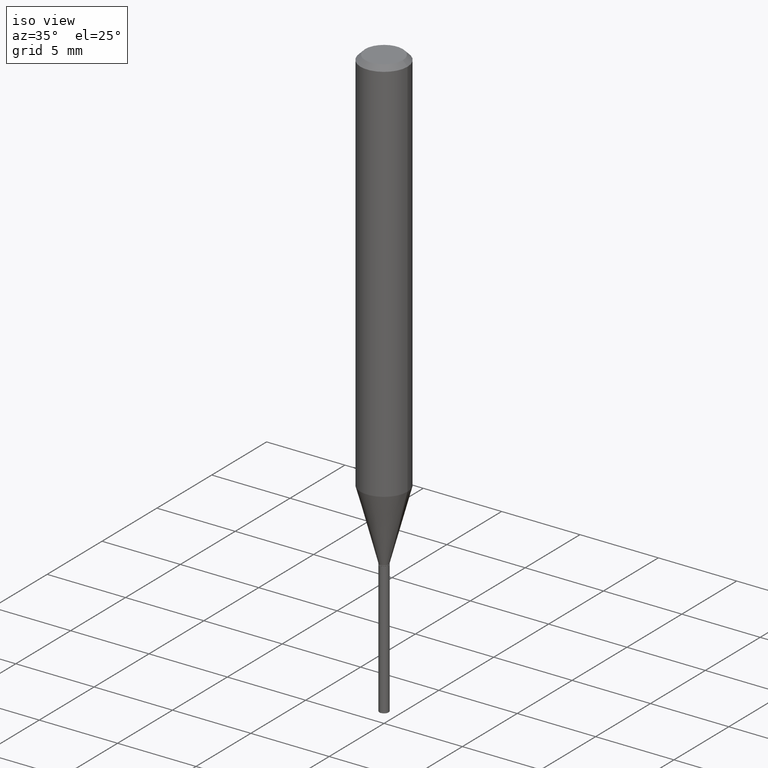
[diagram: clean part render]
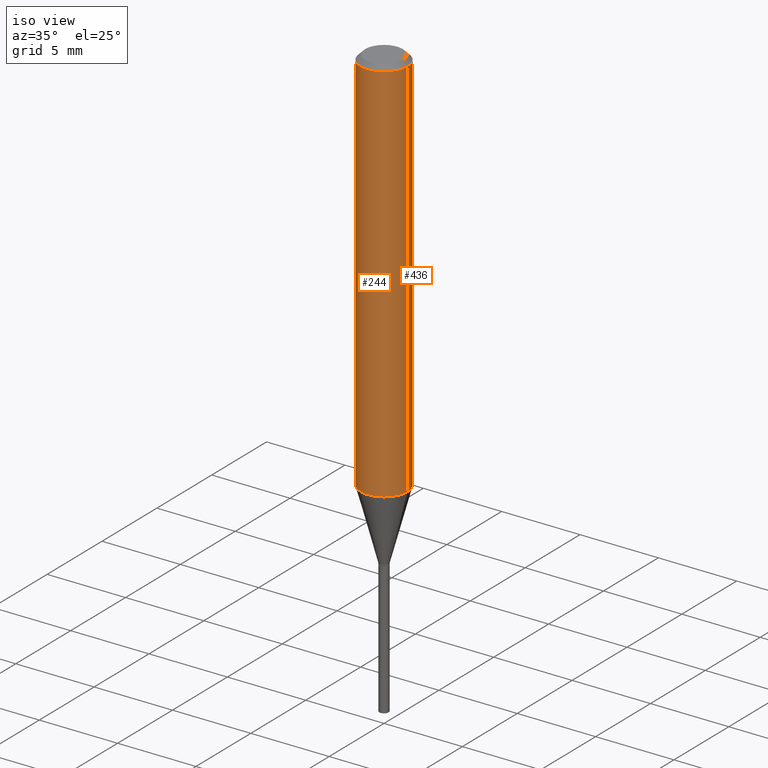
[diagram: same view with one multi-face feature highlighted, each face labeled with its STEP entity id]
A machine part, iso view. The highlighted faces form ONE feature: a constant-radius fillet chain: 2 tangent blend faces with common blend radius 1.4999 mm. The faces share edges in the B-rep.
Their STEP definitions:
[1] entity #436 (Cylinder):
#17 = VERTEX_POINT ( 'NONE', #150 ) ;
#26 = DIRECTION ( 'NONE',  ( 1.000000000000000000, -6.982962677686266711E-15, 0.000000000000000000 ) ) ;
#36 = AXIS2_PLACEMENT_3D ( 'NONE', #487, #180, #154 ) ;
#58 = VERTEX_POINT ( 'NONE', #109 ) ;
#72 = DIRECTION ( 'NONE',  ( -2.445468806185136597E-29, 3.491481338843145583E-15, 1.000000000000000000 ) ) ;
#73 = CYLINDRICAL_SURFACE ( 'NONE', #342, 0.05905000000000006077 ) ;
#78 = EDGE_LOOP ( 'NONE', ( #208, #466, #175, #459 ) ) ;
#98 = DIRECTION ( 'NONE',  ( -2.445468806185136877E-29, 3.491481338843145188E-15, 1.000000000000000000 ) ) ;
#104 = LINE ( 'NONE', #249, #222 ) ;
#109 = CARTESIAN_POINT ( 'NONE',  ( -0.05905000000000011628, -2.991302175709703364E-15, -0.9769141891808567069 ) ) ;
#110 = CARTESIAN_POINT ( 'NONE',  ( 0.05904999999999999832, -4.535783407291118600E-16, -0.01181000000000007218 ) ) ;
#122 = CIRCLE ( 'NONE', #36, 0.05905000000000011628 ) ;
#146 = VERTEX_POINT ( 'NONE', #295 ) ;
#150 = CARTESIAN_POINT ( 'NONE',  ( -0.05904999999999999832, -1.306480542427550405E-15, -0.01181000000000007218 ) ) ;
#154 = DIRECTION ( 'NONE',  ( 1.000000000000000000, -6.982962677686266711E-15, 0.000000000000000000 ) ) ;
#175 = ORIENTED_EDGE ( 'NONE', *, *, #393, .F. ) ;
#177 = AXIS2_PLACEMENT_3D ( 'NONE', #465, #72, #26 ) ;
#180 = DIRECTION ( 'NONE',  ( -2.445468806185136597E-29, 3.491481338843145583E-15, 1.000000000000000000 ) ) ;
#181 = DIRECTION ( 'NONE',  ( -2.445468806185136877E-29, 3.491481338843145188E-15, 1.000000000000000000 ) ) ;
#208 = ORIENTED_EDGE ( 'NONE', *, *, #456, .T. ) ;
#217 = CARTESIAN_POINT ( 'NONE',  ( 0.05905000000000006077, -4.123439461173744764E-16, 2.879382386107503023E-30 ) ) ;
#222 = VECTOR ( 'NONE', #98, 39.37007874015748143 ) ;
#223 = CARTESIAN_POINT ( 'NONE',  ( 0.000000000000000000, 0.000000000000000000, 0.000000000000000000 ) ) ;
#249 = CARTESIAN_POINT ( 'NONE',  ( -0.05905000000000006077, 4.195754854663395916E-16, -2.904631170795524694E-30 ) ) ;
#282 = EDGE_CURVE ( 'NONE', #58, #17, #104, .T. ) ;
#295 = CARTESIAN_POINT ( 'NONE',  ( 0.05905000000000011628, -3.823221607293418566E-15, -0.9769141891808567069 ) ) ;
#328 = CIRCLE ( 'NONE', #177, 0.05904999999999999832 ) ;
#342 = AXIS2_PLACEMENT_3D ( 'NONE', #223, #476, #478 ) ;
#393 = EDGE_CURVE ( 'NONE', #471, #17, #328, .T. ) ;
#398 = FACE_OUTER_BOUND ( 'NONE', #78, .T. ) ;
#403 = LINE ( 'NONE', #217, #446 ) ;
#433 = EDGE_CURVE ( 'NONE', #146, #471, #403, .T. ) ;
#436 = ADVANCED_FACE ( 'NONE', ( #398 ), #73, .T. ) ;
#446 = VECTOR ( 'NONE', #181, 39.37007874015748143 ) ;
#456 = EDGE_CURVE ( 'NONE', #146, #58, #122, .T. ) ;
#459 = ORIENTED_EDGE ( 'NONE', *, *, #433, .F. ) ;
#465 = CARTESIAN_POINT ( 'NONE',  ( 2.888098660104664204E-31, -4.123439461173780263E-17, -0.01181000000000007218 ) ) ;
#466 = ORIENTED_EDGE ( 'NONE', *, *, #282, .T. ) ;
#471 = VERTEX_POINT ( 'NONE', #110 ) ;
#476 = DIRECTION ( 'NONE',  ( -2.445468806185136597E-29, 3.491481338843145583E-15, 1.000000000000000000 ) ) ;
#478 = DIRECTION ( 'NONE',  ( 1.000000000000000000, -6.982962677686266711E-15, 4.876176775795935793E-29 ) ) ;
#487 = CARTESIAN_POINT ( 'NONE',  ( 2.389013175961430346E-29, -3.410877661176043645E-15, -0.9769141891808567069 ) ) ;
[2] entity #244 (Cylinder):
#11 = ORIENTED_EDGE ( 'NONE', *, *, #47, .F. ) ;
#17 = VERTEX_POINT ( 'NONE', #150 ) ;
#25 = CIRCLE ( 'NONE', #262, 0.05904999999999999832 ) ;
#30 = DIRECTION ( 'NONE',  ( 1.000000000000000000, -6.982962677686266711E-15, 4.876176775795935793E-29 ) ) ;
#34 = CIRCLE ( 'NONE', #474, 0.05905000000000011628 ) ;
#47 = EDGE_CURVE ( 'NONE', #17, #471, #25, .T. ) ;
#58 = VERTEX_POINT ( 'NONE', #109 ) ;
#61 = EDGE_LOOP ( 'NONE', ( #421, #374, #277, #11 ) ) ;
#65 = EDGE_CURVE ( 'NONE', #58, #146, #34, .T. ) ;
#77 = CARTESIAN_POINT ( 'NONE',  ( 0.000000000000000000, 0.000000000000000000, 0.000000000000000000 ) ) ;
#98 = DIRECTION ( 'NONE',  ( -2.445468806185136877E-29, 3.491481338843145188E-15, 1.000000000000000000 ) ) ;
#104 = LINE ( 'NONE', #249, #222 ) ;
#109 = CARTESIAN_POINT ( 'NONE',  ( -0.05905000000000011628, -2.991302175709703364E-15, -0.9769141891808567069 ) ) ;
#110 = CARTESIAN_POINT ( 'NONE',  ( 0.05904999999999999832, -4.535783407291118600E-16, -0.01181000000000007218 ) ) ;
#124 = CYLINDRICAL_SURFACE ( 'NONE', #155, 0.05905000000000006077 ) ;
#146 = VERTEX_POINT ( 'NONE', #295 ) ;
#150 = CARTESIAN_POINT ( 'NONE',  ( -0.05904999999999999832, -1.306480542427550405E-15, -0.01181000000000007218 ) ) ;
#155 = AXIS2_PLACEMENT_3D ( 'NONE', #77, #259, #30 ) ;
#181 = DIRECTION ( 'NONE',  ( -2.445468806185136877E-29, 3.491481338843145188E-15, 1.000000000000000000 ) ) ;
#196 = DIRECTION ( 'NONE',  ( -2.445468806185136597E-29, 3.491481338843145583E-15, 1.000000000000000000 ) ) ;
#217 = CARTESIAN_POINT ( 'NONE',  ( 0.05905000000000006077, -4.123439461173744764E-16, 2.879382386107503023E-30 ) ) ;
#222 = VECTOR ( 'NONE', #98, 39.37007874015748143 ) ;
#224 = CARTESIAN_POINT ( 'NONE',  ( 2.389013175961430346E-29, -3.410877661176043645E-15, -0.9769141891808567069 ) ) ;
#244 = ADVANCED_FACE ( 'NONE', ( #413 ), #124, .T. ) ;
#249 = CARTESIAN_POINT ( 'NONE',  ( -0.05905000000000006077, 4.195754854663395916E-16, -2.904631170795524694E-30 ) ) ;
#259 = DIRECTION ( 'NONE',  ( -2.445468806185136597E-29, 3.491481338843145583E-15, 1.000000000000000000 ) ) ;
#262 = AXIS2_PLACEMENT_3D ( 'NONE', #412, #196, #399 ) ;
#275 = DIRECTION ( 'NONE',  ( -2.445468806185136597E-29, 3.491481338843145583E-15, 1.000000000000000000 ) ) ;
#277 = ORIENTED_EDGE ( 'NONE', *, *, #433, .T. ) ;
#282 = EDGE_CURVE ( 'NONE', #58, #17, #104, .T. ) ;
#285 = DIRECTION ( 'NONE',  ( 1.000000000000000000, -6.982962677686266711E-15, 0.000000000000000000 ) ) ;
#295 = CARTESIAN_POINT ( 'NONE',  ( 0.05905000000000011628, -3.823221607293418566E-15, -0.9769141891808567069 ) ) ;
#374 = ORIENTED_EDGE ( 'NONE', *, *, #65, .T. ) ;
#399 = DIRECTION ( 'NONE',  ( 1.000000000000000000, -6.982962677686266711E-15, 0.000000000000000000 ) ) ;
#403 = LINE ( 'NONE', #217, #446 ) ;
#412 = CARTESIAN_POINT ( 'NONE',  ( 2.888098660104664204E-31, -4.123439461173780263E-17, -0.01181000000000007218 ) ) ;
#413 = FACE_OUTER_BOUND ( 'NONE', #61, .T. ) ;
#421 = ORIENTED_EDGE ( 'NONE', *, *, #282, .F. ) ;
#433 = EDGE_CURVE ( 'NONE', #146, #471, #403, .T. ) ;
#446 = VECTOR ( 'NONE', #181, 39.37007874015748143 ) ;
#471 = VERTEX_POINT ( 'NONE', #110 ) ;
#474 = AXIS2_PLACEMENT_3D ( 'NONE', #224, #275, #285 ) ;